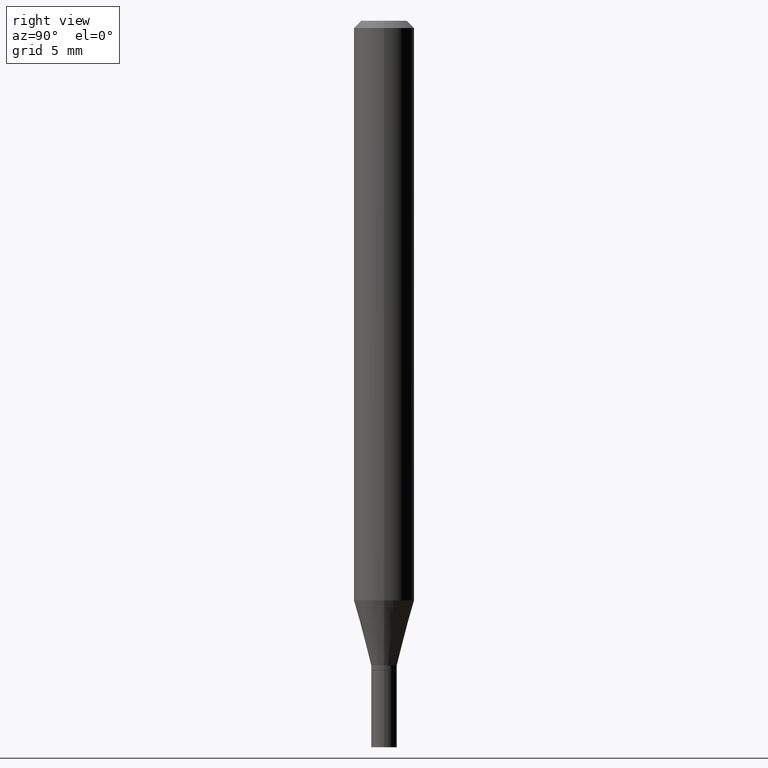
[diagram: clean part render]
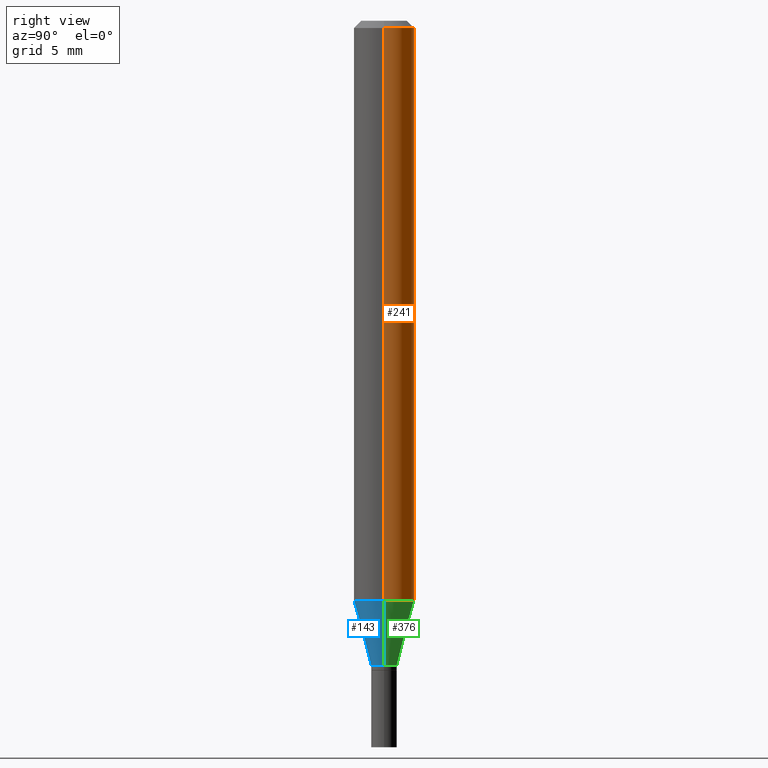
[diagram: same view with three faces highlighted in distinct colors, each labeled with its STEP entity id]
A machine part, right view with three faces highlighted in distinct colors.
Their STEP definitions:

[orange] entity #241 — the highlighted cylindrical surface (edge-blend (fillet) strip) has radius 1.5875 mm, axis along (-0, 0, 1).
#7 = LINE ( 'NONE', #407, #211 ) ;
#25 = CARTESIAN_POINT ( 'NONE',  ( 0.06250000000000000000, -4.888073874380388472E-16, -0.01499999999999999944 ) ) ;
#28 = CARTESIAN_POINT ( 'NONE',  ( 0.06250000000000000000, -4.614502942346933576E-15, -1.196646170927520458 ) ) ;
#29 = CIRCLE ( 'NONE', #287, 0.06250000000000000000 ) ;
#34 = VERTEX_POINT ( 'NONE', #310 ) ;
#37 = VERTEX_POINT ( 'NONE', #25 ) ;
#61 = DIRECTION ( 'NONE',  ( -2.445468806185136597E-29, 3.491481338843145583E-15, 1.000000000000000000 ) ) ;
#68 = EDGE_CURVE ( 'NONE', #116, #399, #29, .T. ) ;
#79 = DIRECTION ( 'NONE',  ( -2.445468806185136877E-29, 3.491481338843145188E-15, 1.000000000000000000 ) ) ;
#116 = VERTEX_POINT ( 'NONE', #28 ) ;
#127 = DIRECTION ( 'NONE',  ( -2.445468806185136877E-29, 3.491481338843145188E-15, 1.000000000000000000 ) ) ;
#132 = CARTESIAN_POINT ( 'NONE',  ( -0.06250000000000000000, 4.440892098500626162E-16, -3.074334431409316114E-30 ) ) ;
#136 = DIRECTION ( 'NONE',  ( -2.445468806185136597E-29, 3.491481338843145583E-15, 1.000000000000000000 ) ) ;
#147 = ORIENTED_EDGE ( 'NONE', *, *, #231, .F. ) ;
#156 = CIRCLE ( 'NONE', #417, 0.06250000000000000000 ) ;
#203 = CARTESIAN_POINT ( 'NONE',  ( 3.668203209277705088E-31, -5.237222008264718399E-17, -0.01499999999999999944 ) ) ;
#211 = VECTOR ( 'NONE', #79, 39.37007874015748143 ) ;
#215 = DIRECTION ( 'NONE',  ( -2.445468806185136597E-29, 3.491481338843145583E-15, 1.000000000000000000 ) ) ;
#231 = EDGE_CURVE ( 'NONE', #37, #34, #156, .T. ) ;
#241 = ADVANCED_FACE ( 'NONE', ( #420 ), #437, .T. ) ;
#276 = AXIS2_PLACEMENT_3D ( 'NONE', #289, #136, #452 ) ;
#278 = CARTESIAN_POINT ( 'NONE',  ( 2.926360883044138788E-29, -4.178067774991542695E-15, -1.196646170927520458 ) ) ;
#287 = AXIS2_PLACEMENT_3D ( 'NONE', #278, #61, #341 ) ;
#289 = CARTESIAN_POINT ( 'NONE',  ( 0.000000000000000000, 0.000000000000000000, 0.000000000000000000 ) ) ;
#291 = ORIENTED_EDGE ( 'NONE', *, *, #68, .T. ) ;
#310 = CARTESIAN_POINT ( 'NONE',  ( -0.06250000000000000000, -1.671130787687032468E-15, -0.01499999999999999944 ) ) ;
#314 = DIRECTION ( 'NONE',  ( 1.000000000000000000, -6.982962677686266711E-15, 0.000000000000000000 ) ) ;
#317 = CARTESIAN_POINT ( 'NONE',  ( -0.06250000000000000000, -3.733978565141479290E-15, -1.196646170927520458 ) ) ;
#341 = DIRECTION ( 'NONE',  ( 1.000000000000000000, -6.982962677686270655E-15, 0.000000000000000000 ) ) ;
#352 = EDGE_CURVE ( 'NONE', #399, #34, #372, .T. ) ;
#357 = ORIENTED_EDGE ( 'NONE', *, *, #352, .T. ) ;
#372 = LINE ( 'NONE', #132, #411 ) ;
#399 = VERTEX_POINT ( 'NONE', #317 ) ;
#407 = CARTESIAN_POINT ( 'NONE',  ( 0.06250000000000000000, -4.364351673553916694E-16, 3.047610484872459871E-30 ) ) ;
#411 = VECTOR ( 'NONE', #127, 39.37007874015748143 ) ;
#417 = AXIS2_PLACEMENT_3D ( 'NONE', #203, #215, #314 ) ;
#420 = FACE_OUTER_BOUND ( 'NONE', #463, .T. ) ;
#428 = EDGE_CURVE ( 'NONE', #116, #37, #7, .T. ) ;
#437 = CYLINDRICAL_SURFACE ( 'NONE', #276, 0.06250000000000000000 ) ;
#439 = ORIENTED_EDGE ( 'NONE', *, *, #428, .F. ) ;
#452 = DIRECTION ( 'NONE',  ( 1.000000000000000000, -6.982962677686266711E-15, 4.876176775795935793E-29 ) ) ;
#463 = EDGE_LOOP ( 'NONE', ( #291, #357, #147, #439 ) ) ;

[blue] entity #143 — the highlighted conical surface has half-angle 15 deg.
#6 = CARTESIAN_POINT ( 'NONE',  ( 0.02649999999999992639, -4.832210172958911994E-15, -1.331000000000000183 ) ) ;
#14 = CONICAL_SURFACE ( 'NONE', #39, 0.02649999999999992639, 0.2617993877991499074 ) ;
#18 = LINE ( 'NONE', #367, #363 ) ;
#21 = AXIS2_PLACEMENT_3D ( 'NONE', #266, #361, #115 ) ;
#28 = CARTESIAN_POINT ( 'NONE',  ( 0.06250000000000000000, -4.614502942346933576E-15, -1.196646170927520458 ) ) ;
#33 = ORIENTED_EDGE ( 'NONE', *, *, #309, .T. ) ;
#39 = AXIS2_PLACEMENT_3D ( 'NONE', #353, #222, #217 ) ;
#44 = AXIS2_PLACEMENT_3D ( 'NONE', #151, #438, #443 ) ;
#75 = ORIENTED_EDGE ( 'NONE', *, *, #444, .F. ) ;
#115 = DIRECTION ( 'NONE',  ( 1.000000000000000000, -6.982962677686260400E-15, 0.000000000000000000 ) ) ;
#116 = VERTEX_POINT ( 'NONE', #28 ) ;
#118 = ORIENTED_EDGE ( 'NONE', *, *, #324, .T. ) ;
#143 = ADVANCED_FACE ( 'NONE', ( #323 ), #14, .T. ) ;
#151 = CARTESIAN_POINT ( 'NONE',  ( 2.926360883044138788E-29, -4.178067774991542695E-15, -1.196646170927520458 ) ) ;
#217 = DIRECTION ( 'NONE',  ( 1.000000000000000000, -6.982962677686260400E-15, 0.000000000000000000 ) ) ;
#220 = VERTEX_POINT ( 'NONE', #273 ) ;
#222 = DIRECTION ( 'NONE',  ( -2.445468806185136597E-29, 3.491481338843145583E-15, 1.000000000000000000 ) ) ;
#253 = CIRCLE ( 'NONE', #44, 0.06250000000000000000 ) ;
#257 = ORIENTED_EDGE ( 'NONE', *, *, #304, .F. ) ;
#261 = EDGE_LOOP ( 'NONE', ( #75, #33, #118, #257 ) ) ;
#266 = CARTESIAN_POINT ( 'NONE',  ( 3.254918981032417030E-29, -4.647161662000227094E-15, -1.331000000000000183 ) ) ;
#273 = CARTESIAN_POINT ( 'NONE',  ( -0.02649999999999992639, -4.096423201082640425E-15, -1.331000000000000183 ) ) ;
#274 = LINE ( 'NONE', #375, #451 ) ;
#293 = VERTEX_POINT ( 'NONE', #6 ) ;
#304 = EDGE_CURVE ( 'NONE', #399, #116, #253, .T. ) ;
#309 = EDGE_CURVE ( 'NONE', #220, #293, #397, .T. ) ;
#317 = CARTESIAN_POINT ( 'NONE',  ( -0.06250000000000000000, -3.733978565141479290E-15, -1.196646170927520458 ) ) ;
#323 = FACE_OUTER_BOUND ( 'NONE', #261, .T. ) ;
#324 = EDGE_CURVE ( 'NONE', #293, #116, #274, .T. ) ;
#353 = CARTESIAN_POINT ( 'NONE',  ( 3.254918981032417030E-29, -4.647161662000227094E-15, -1.331000000000000183 ) ) ;
#361 = DIRECTION ( 'NONE',  ( -2.445468806185136597E-29, 3.491481338843145583E-15, 1.000000000000000000 ) ) ;
#363 = VECTOR ( 'NONE', #449, 39.37007874015748854 ) ;
#367 = CARTESIAN_POINT ( 'NONE',  ( -0.02649999999999992639, -4.458867837023800771E-15, -1.331000000000000183 ) ) ;
#375 = CARTESIAN_POINT ( 'NONE',  ( 0.02649999999999992639, -4.832210172958911994E-15, -1.331000000000000183 ) ) ;
#397 = CIRCLE ( 'NONE', #21, 0.02649999999999992639 ) ;
#399 = VERTEX_POINT ( 'NONE', #317 ) ;
#438 = DIRECTION ( 'NONE',  ( -2.445468806185136597E-29, 3.491481338843145583E-15, 1.000000000000000000 ) ) ;
#443 = DIRECTION ( 'NONE',  ( 1.000000000000000000, -6.982962677686270655E-15, 0.000000000000000000 ) ) ;
#444 = EDGE_CURVE ( 'NONE', #220, #399, #18, .T. ) ;
#449 = DIRECTION ( 'NONE',  ( -0.2588190451025211836, 5.211531920934547886E-15, 0.9659258262890679791 ) ) ;
#451 = VECTOR ( 'NONE', #455, 39.37007874015748854 ) ;
#455 = DIRECTION ( 'NONE',  ( 0.2588190451025211836, 1.565188264969622559E-15, 0.9659258262890679791 ) ) ;

[green] entity #376 — the highlighted conical surface has half-angle 15 deg.
#6 = CARTESIAN_POINT ( 'NONE',  ( 0.02649999999999992639, -4.832210172958911994E-15, -1.331000000000000183 ) ) ;
#18 = LINE ( 'NONE', #367, #363 ) ;
#28 = CARTESIAN_POINT ( 'NONE',  ( 0.06250000000000000000, -4.614502942346933576E-15, -1.196646170927520458 ) ) ;
#29 = CIRCLE ( 'NONE', #287, 0.06250000000000000000 ) ;
#53 = DIRECTION ( 'NONE',  ( 1.000000000000000000, -6.982962677686260400E-15, 0.000000000000000000 ) ) ;
#61 = DIRECTION ( 'NONE',  ( -2.445468806185136597E-29, 3.491481338843145583E-15, 1.000000000000000000 ) ) ;
#68 = EDGE_CURVE ( 'NONE', #116, #399, #29, .T. ) ;
#84 = FACE_OUTER_BOUND ( 'NONE', #435, .T. ) ;
#106 = ORIENTED_EDGE ( 'NONE', *, *, #391, .T. ) ;
#116 = VERTEX_POINT ( 'NONE', #28 ) ;
#161 = DIRECTION ( 'NONE',  ( -2.445468806185136597E-29, 3.491481338843145583E-15, 1.000000000000000000 ) ) ;
#187 = ORIENTED_EDGE ( 'NONE', *, *, #68, .F. ) ;
#220 = VERTEX_POINT ( 'NONE', #273 ) ;
#238 = CARTESIAN_POINT ( 'NONE',  ( 3.254918981032417030E-29, -4.647161662000227094E-15, -1.331000000000000183 ) ) ;
#273 = CARTESIAN_POINT ( 'NONE',  ( -0.02649999999999992639, -4.096423201082640425E-15, -1.331000000000000183 ) ) ;
#274 = LINE ( 'NONE', #375, #451 ) ;
#278 = CARTESIAN_POINT ( 'NONE',  ( 2.926360883044138788E-29, -4.178067774991542695E-15, -1.196646170927520458 ) ) ;
#287 = AXIS2_PLACEMENT_3D ( 'NONE', #278, #61, #341 ) ;
#288 = AXIS2_PLACEMENT_3D ( 'NONE', #365, #161, #393 ) ;
#293 = VERTEX_POINT ( 'NONE', #6 ) ;
#317 = CARTESIAN_POINT ( 'NONE',  ( -0.06250000000000000000, -3.733978565141479290E-15, -1.196646170927520458 ) ) ;
#324 = EDGE_CURVE ( 'NONE', #293, #116, #274, .T. ) ;
#341 = DIRECTION ( 'NONE',  ( 1.000000000000000000, -6.982962677686270655E-15, 0.000000000000000000 ) ) ;
#342 = CIRCLE ( 'NONE', #288, 0.02649999999999992639 ) ;
#347 = CONICAL_SURFACE ( 'NONE', #405, 0.02649999999999992639, 0.2617993877991499074 ) ;
#363 = VECTOR ( 'NONE', #449, 39.37007874015748854 ) ;
#365 = CARTESIAN_POINT ( 'NONE',  ( 3.254918981032417030E-29, -4.647161662000227094E-15, -1.331000000000000183 ) ) ;
#367 = CARTESIAN_POINT ( 'NONE',  ( -0.02649999999999992639, -4.458867837023800771E-15, -1.331000000000000183 ) ) ;
#368 = DIRECTION ( 'NONE',  ( -2.445468806185136597E-29, 3.491481338843145583E-15, 1.000000000000000000 ) ) ;
#375 = CARTESIAN_POINT ( 'NONE',  ( 0.02649999999999992639, -4.832210172958911994E-15, -1.331000000000000183 ) ) ;
#376 = ADVANCED_FACE ( 'NONE', ( #84 ), #347, .T. ) ;
#391 = EDGE_CURVE ( 'NONE', #293, #220, #342, .T. ) ;
#393 = DIRECTION ( 'NONE',  ( 1.000000000000000000, -6.982962677686260400E-15, 0.000000000000000000 ) ) ;
#398 = ORIENTED_EDGE ( 'NONE', *, *, #444, .T. ) ;
#399 = VERTEX_POINT ( 'NONE', #317 ) ;
#405 = AXIS2_PLACEMENT_3D ( 'NONE', #238, #368, #53 ) ;
#430 = ORIENTED_EDGE ( 'NONE', *, *, #324, .F. ) ;
#435 = EDGE_LOOP ( 'NONE', ( #106, #398, #187, #430 ) ) ;
#444 = EDGE_CURVE ( 'NONE', #220, #399, #18, .T. ) ;
#449 = DIRECTION ( 'NONE',  ( -0.2588190451025211836, 5.211531920934547886E-15, 0.9659258262890679791 ) ) ;
#451 = VECTOR ( 'NONE', #455, 39.37007874015748854 ) ;
#455 = DIRECTION ( 'NONE',  ( 0.2588190451025211836, 1.565188264969622559E-15, 0.9659258262890679791 ) ) ;